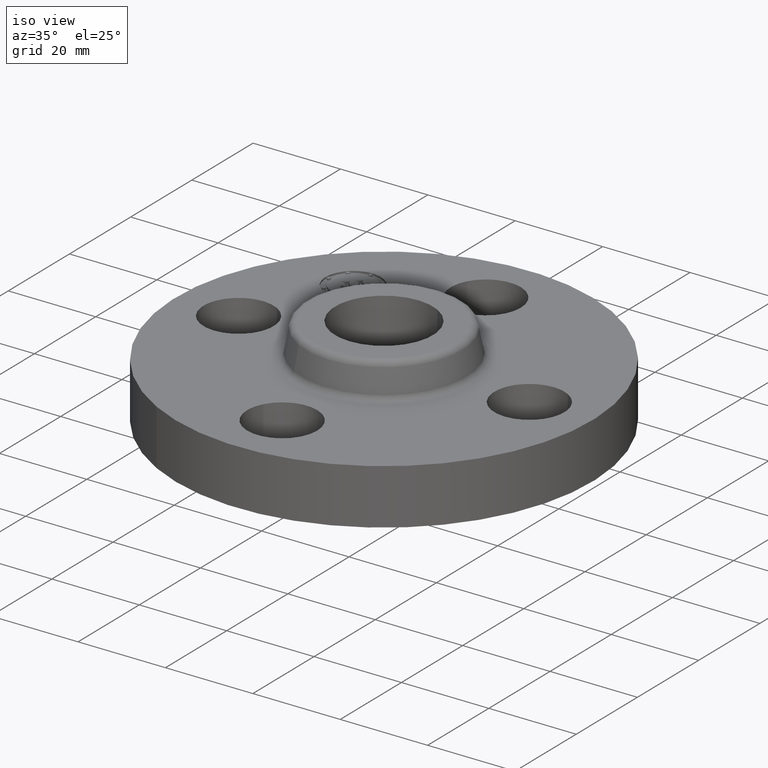
[diagram: clean part render]
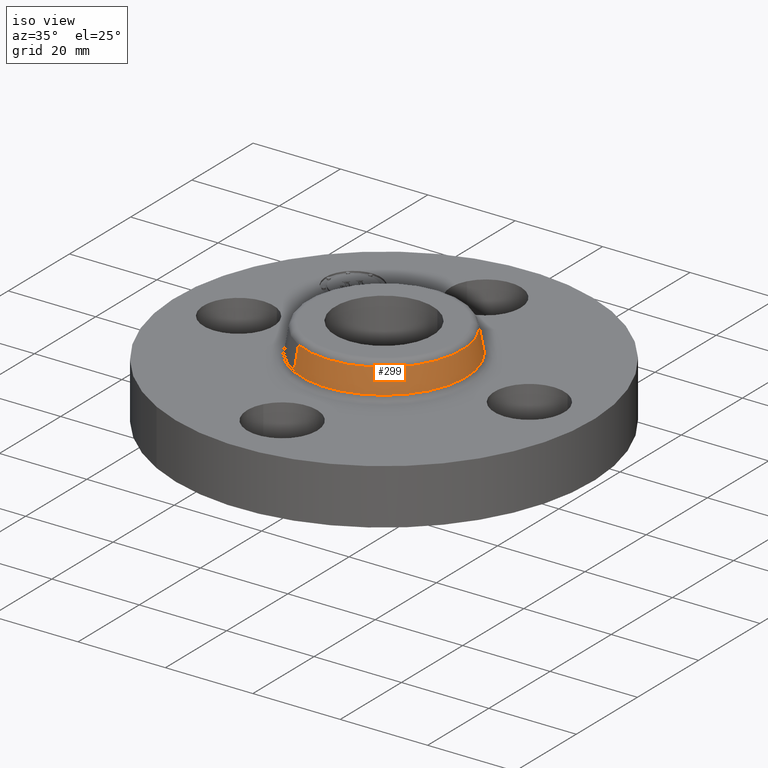
[diagram: same view with one face highlighted and labeled with its STEP entity id]
A machine part, iso view. The second image highlights one B-rep face of the part: STEP entity #299.
In plain terms, the highlighted conical surface has half-angle 10 deg.
Its self-contained STEP definition (entity closure, byte-faithful):
#235=AXIS2_PLACEMENT_3D('Circle Axis2P3D',#233,#234,$) ;
#272=AXIS2_PLACEMENT_3D('Cone Axis2P3D',#269,#270,#271) ;
#283=AXIS2_PLACEMENT_3D('Circle Axis2P3D',#281,#282,$) ;
#230=CARTESIAN_POINT('Vertex',(0.355377782267,0.650514667009,0.549581109342)) ;
#233=CARTESIAN_POINT('Axis2P3D Location',(0.,0.,0.549581109342)) ;
#237=CARTESIAN_POINT('Vertex',(-0.355377782267,-0.650514667009,0.549581109342)) ;
#269=CARTESIAN_POINT('Axis2P3D Location',(0.,0.,0.760418890663)) ;
#274=CARTESIAN_POINT('Line Origine',(0.346466127012,0.634201991484,0.655000000003)) ;
#278=CARTESIAN_POINT('Vertex',(0.337554471756,0.617889315958,0.760418890663)) ;
#281=CARTESIAN_POINT('Axis2P3D Location',(0.,0.,0.760418890663)) ;
#285=CARTESIAN_POINT('Vertex',(-0.337554471756,-0.617889315958,0.760418890663)) ;
#288=CARTESIAN_POINT('Line Origine',(-0.346466127012,-0.634201991484,0.655000000003)) ;
#234=DIRECTION('Axis2P3D Direction',(0.,0.,-0.0393700787402)) ;
#270=DIRECTION('Axis2P3D Direction',(0.,0.,-0.0393700787402)) ;
#271=DIRECTION('Axis2P3D XDirection',(-0.0188750212049,-0.0345504945626,0.)) ;
#275=DIRECTION('Vector Direction',(0.00327761303565,0.00599963041829,-0.03877195878)) ;
#282=DIRECTION('Axis2P3D Direction',(0.,0.,-0.0393700787402)) ;
#289=DIRECTION('Vector Direction',(-0.00327761303565,-0.00599963041829,-0.03877195878)) ;
#276=VECTOR('Line Direction',#275,0.0393700787402) ;
#290=VECTOR('Line Direction',#289,0.0393700787402) ;
#294=ORIENTED_EDGE('',*,*,#239,.F.) ;
#295=ORIENTED_EDGE('',*,*,#280,.T.) ;
#296=ORIENTED_EDGE('',*,*,#287,.T.) ;
#297=ORIENTED_EDGE('',*,*,#292,.F.) ;
#299=ADVANCED_FACE('PartBody',(#298),#273,.T.) ;
#236=CIRCLE('generated circle',#235,0.741257512693) ;
#284=CIRCLE('generated circle',#283,0.704081123293) ;
#273=CONICAL_SURFACE('Cone',#272,0.704081123293,0.174532925199) ;
#239=EDGE_CURVE('',#231,#238,#236,.T.) ;
#280=EDGE_CURVE('',#231,#279,#277,.F.) ;
#287=EDGE_CURVE('',#279,#286,#284,.T.) ;
#292=EDGE_CURVE('',#238,#286,#291,.F.) ;
#293=EDGE_LOOP('',(#294,#295,#296,#297)) ;
#298=FACE_OUTER_BOUND('',#293,.T.) ;
#277=LINE('Line',#274,#276) ;
#291=LINE('Line',#288,#290) ;
#231=VERTEX_POINT('',#230) ;
#238=VERTEX_POINT('',#237) ;
#279=VERTEX_POINT('',#278) ;
#286=VERTEX_POINT('',#285) ;